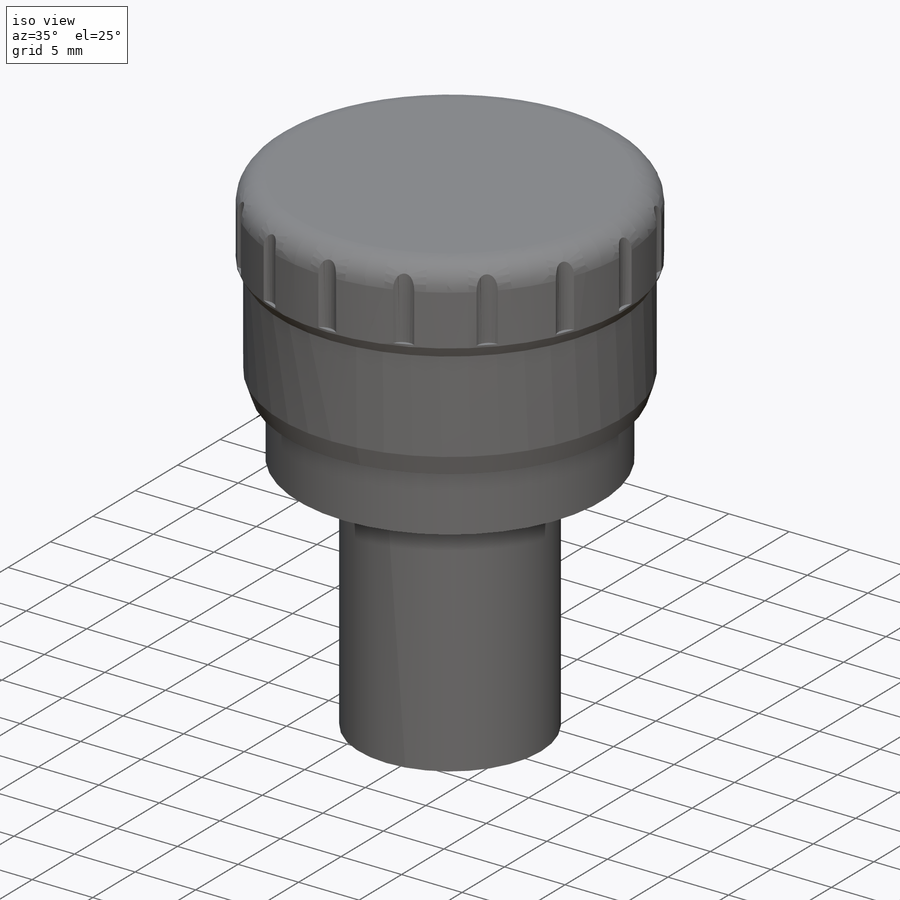
[diagram: iso view]
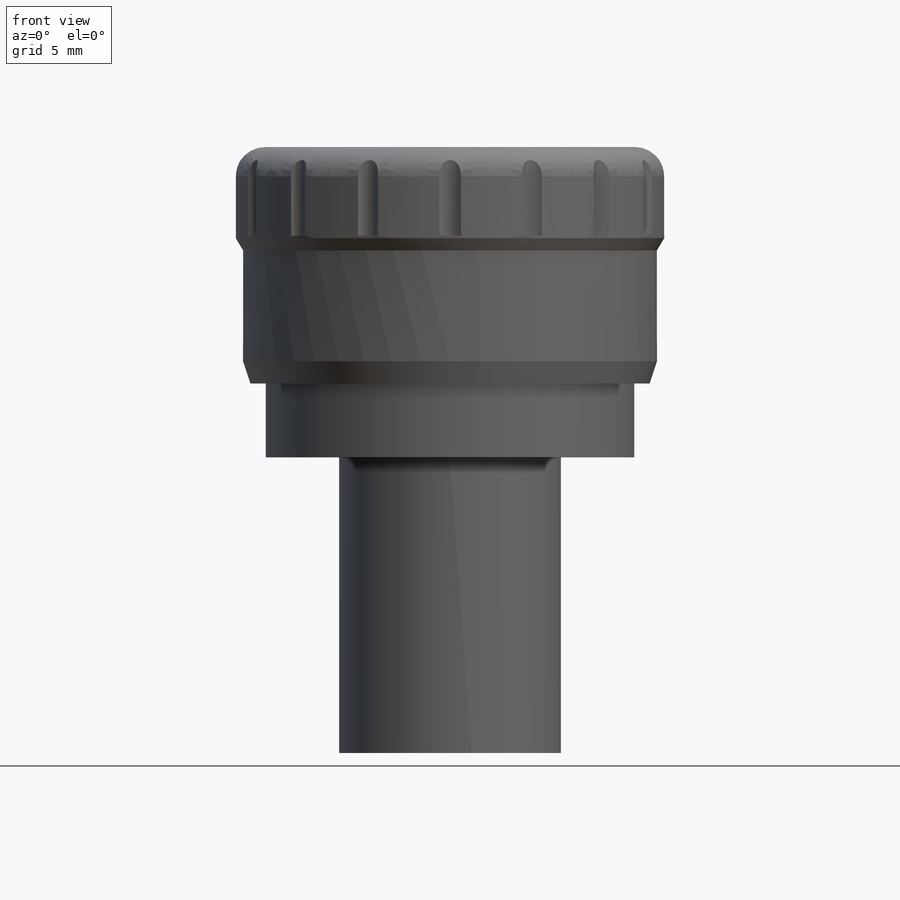
[diagram: front view]
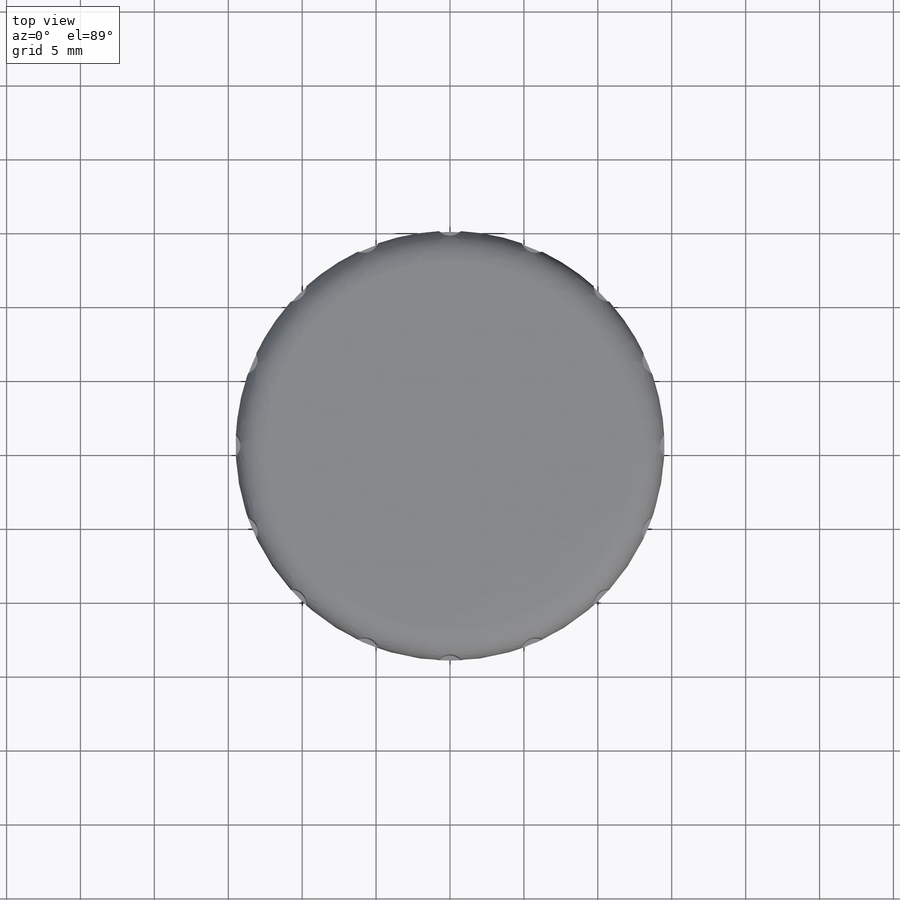
[diagram: top view]
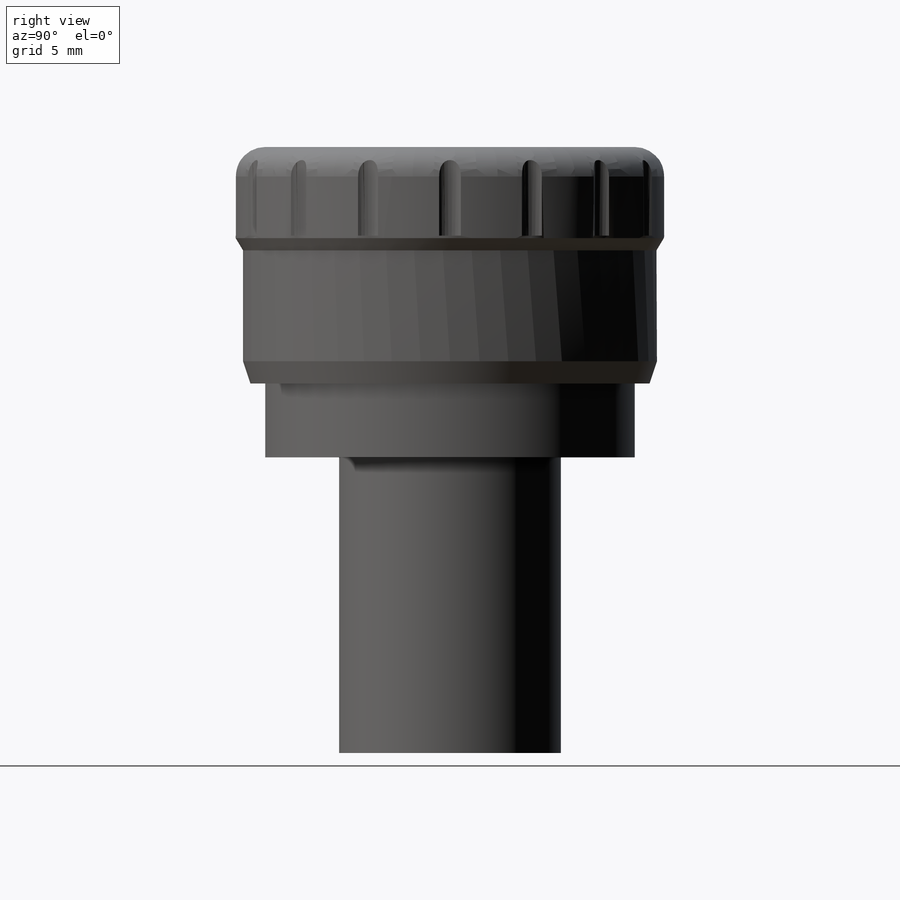
[diagram: right view]
SOLIDWORKS PART (.sldprt)
format: sldprt  version: not decoded by parser v0  size: 269,312 bytes
history: native  units: mm
features: sketch x5, extrude x4, chamfer x2, material x1, fillet x1, cut_extrude x1, pattern_circular x1 (+11 scaffold rows collapsed)
feature tree (26):
  scaffold x11  (default folders/planes/origin — collapsed)
  material  "ABS"
  sketch  "Sketch1"  dims[D1=25.0mm]
  extrude  "Boss-Extrude1"  Depth=5mm
  sketch  "Sketch2"  dims[D1=15.0mm]
  extrude  "Boss-Extrude2"  Depth=20mm
  sketch  "Sketch3"  dims[D1=28.0mm]
  extrude  "Boss-Extrude3"  Depth=9mm
  chamfer  "Chamfer1"  Distance=0.5mm
  sketch  "Sketch4"  dims[D1=29.0mm]
  extrude  "Boss-Extrude4"  Depth=7mm
  fillet  "Fillet3"  Radius=2mm
  chamfer  "Chamfer2"  Distance=0.5mm Angle=59deg
  sketch  "Sketch5"  dims[D2=1.0mm D1=1.5mm]
  cut_extrude  "Cut-Extrude2"  Depth=6mm
  pattern_circular  "CirPattern1"  Count=16  [1 undecoded]
decode coverage: 14 of 14 modeling features carry decoded parameters
note: 1 parameter value undecoded
note: suppression state not decoded; provenance and decode notes live in map.json
